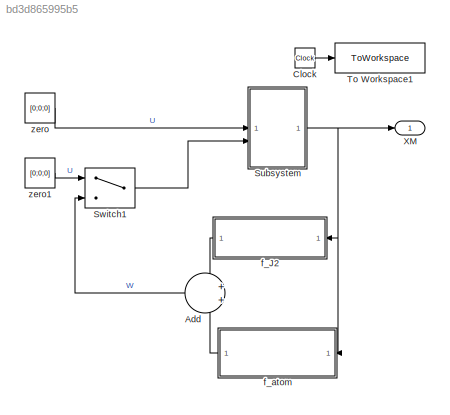
MODEL slx_bd3d865995b5
KIND model
CONFIG AbsTol = auto
CONFIG EnableMultiTasking = off
CONFIG FixedStep = 1
CONFIG MaxStep = auto
CONFIG MinStep = auto
CONFIG RelTol = 1e-3
CONFIG SampleTimeConstraint = Unconstrained
CONFIG SolverName = FixedStepAuto
CONFIG StartTime = 0.0
CONFIG StopTime =  6000*3
BLOCK [Sum] Add
  NameLocation = top
BLOCK [Clock] Clock
  DisplayTime = on
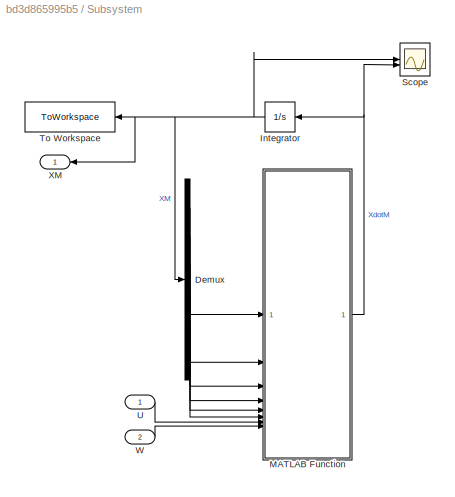
BLOCK [SubSystem] Subsystem
BLOCK [Demux] Subsystem/Demux
  Outputs = 6
BLOCK [Integrator] Subsystem/Integrator
  InitialCondition = X_init_cible
  NameLocation = top
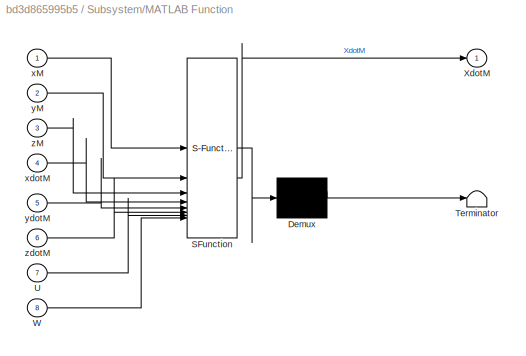
BLOCK [SubSystem] Subsystem/MATLAB Function
  ErrorFcn = Stateflow.Translate.translate
  LibrarySourceBlock = simulink/User-Defined\nFunctions/MATLAB Function
  PermitHierarchicalResolution = ExplicitOnly
  SFBlockType = MATLAB Function
  TreatAsAtomicUnit = on
BLOCK [Demux] Subsystem/MATLAB Function/ Demux 
  Outputs = 1
BLOCK [S-Function] Subsystem/MATLAB Function/ SFunction 
  EnableBusSupport = on
  FunctionName = sf_sfun
  PortCounts = [8 2]
  SFcnIsStateOwnerBlock = off
  SFunctionDeploymentMode = off
  Tag = Stateflow S-Function 2
BLOCK [Terminator] Subsystem/MATLAB Function/ Terminator 
BLOCK [Inport] Subsystem/MATLAB Function/U
  Port = 7
BLOCK [Inport] Subsystem/MATLAB Function/W
  Port = 8
BLOCK [Outport] Subsystem/MATLAB Function/XdotM
BLOCK [Inport] Subsystem/MATLAB Function/xM
BLOCK [Inport] Subsystem/MATLAB Function/xdotM
  Port = 4
BLOCK [Inport] Subsystem/MATLAB Function/yM
  Port = 2
BLOCK [Inport] Subsystem/MATLAB Function/ydotM
  Port = 5
BLOCK [Inport] Subsystem/MATLAB Function/zM
  Port = 3
BLOCK [Inport] Subsystem/MATLAB Function/zdotM
  Port = 6
BLOCK [Scope] Subsystem/Scope
  Floating = off
  NumInputPorts = 2
  ScopeSpecificationString = Simulink.scopes.TimeScopeBlockCfg('CurrentConfiguration', extmgr.ConfigurationSet(extmgr.Configuration('Core','General UI',true),extmgr.Configuration('Core','Source UI',true),extmgr.Configuration('Sources','WiredSimulink',true),extmgr.Configuration('Visuals','Time Domain',true,'SerializedDisplays',{struct('MinYLimReal','-8857214.37141','MaxYLimReal','8848029.84781','YLabelReal','','MinYLimMag','  ...<+2116ch>
BLOCK [ToWorkspace] Subsystem/To Workspace
  FixptAsFi = on
  MaxDataPoints = inf
  NameLocation = top
  SampleTime = -1
  Save2DSignal = 2-D array (concatenate along first dimension)
  VariableName = XM
BLOCK [Inport] Subsystem/U
BLOCK [Inport] Subsystem/W
  Port = 2
BLOCK [Outport] Subsystem/XM
  NameLocation = top
BLOCK [Switch] Switch1
  Criteria = u2 ~= 0
  InputSameDT = off
  SaturateOnIntegerOverflow = off
BLOCK [ToWorkspace] To Workspace1
  FixptAsFi = on
  MaxDataPoints = inf
  SampleTime = -1
  VariableName = t
BLOCK [Outport] XM
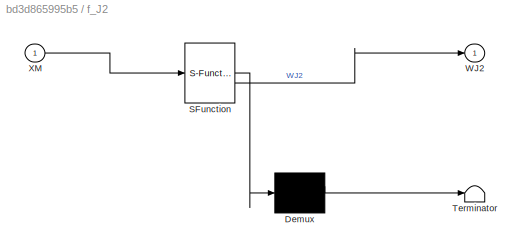
BLOCK [SubSystem] f_J2
  ErrorFcn = Stateflow.Translate.translate
  LibrarySourceBlock = simulink/User-Defined\nFunctions/MATLAB Function
  NameLocation = top
  PermitHierarchicalResolution = ExplicitOnly
  SFBlockType = MATLAB Function
  TreatAsAtomicUnit = on
BLOCK [Demux] f_J2/ Demux 
  Outputs = 1
BLOCK [S-Function] f_J2/ SFunction 
  EnableBusSupport = on
  FunctionName = sf_sfun
  PortCounts = [1 2]
  SFcnIsStateOwnerBlock = off
  SFunctionDeploymentMode = off
  Tag = Stateflow S-Function 4
BLOCK [Terminator] f_J2/ Terminator 
BLOCK [Outport] f_J2/WJ2
BLOCK [Inport] f_J2/XM
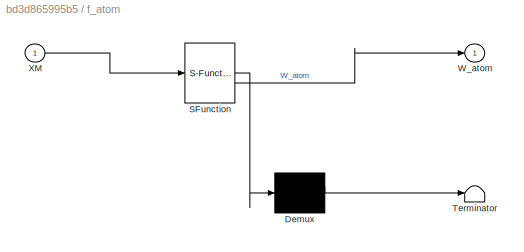
BLOCK [SubSystem] f_atom
  ErrorFcn = Stateflow.Translate.translate
  LibrarySourceBlock = simulink/User-Defined\nFunctions/MATLAB Function
  NameLocation = top
  PermitHierarchicalResolution = ExplicitOnly
  SFBlockType = MATLAB Function
  TreatAsAtomicUnit = on
BLOCK [Demux] f_atom/ Demux 
  Outputs = 1
BLOCK [S-Function] f_atom/ SFunction 
  EnableBusSupport = on
  FunctionName = sf_sfun
  PortCounts = [1 2]
  SFcnIsStateOwnerBlock = off
  SFunctionDeploymentMode = off
  Tag = Stateflow S-Function 3
BLOCK [Terminator] f_atom/ Terminator 
BLOCK [Outport] f_atom/W_atom
BLOCK [Inport] f_atom/XM
BLOCK [Constant] zero
  Value = [0;0;0]
BLOCK [Constant] zero1
  Value = [0;0;0]
LINE Add:1 -> Switch1:3
LINE Clock:1 -> To Workspace1:1
LINE Subsystem/Demux:1 -> Subsystem/MATLAB Function:1
LINE Subsystem/Demux:2 -> Subsystem/MATLAB Function:2
LINE Subsystem/Demux:3 -> Subsystem/MATLAB Function:3
LINE Subsystem/Demux:4 -> Subsystem/MATLAB Function:4
LINE Subsystem/Demux:5 -> Subsystem/MATLAB Function:5
LINE Subsystem/Demux:6 -> Subsystem/MATLAB Function:6
NET Subsystem/Integrator:1 -> Subsystem/Demux:1, Subsystem/Scope:1, Subsystem/To Workspace:1, Subsystem/XM:1
NET Subsystem/MATLAB Function:1 -> Subsystem/Integrator:1, Subsystem/Scope:2
LINE Subsystem/U:1 -> Subsystem/MATLAB Function:7
LINE Subsystem/W:1 -> Subsystem/MATLAB Function:8
NET Subsystem:1 -> XM:1, f_J2:1, f_atom:1
LINE Switch1:1 -> Subsystem:2
LINE f_J2:1 -> Add:1
LINE f_atom:1 -> Add:2
LINE zero1:1 -> Switch1:1
LINE zero:1 -> Subsystem:1
note: NET lines group one-source signal fan-out (src -> all destinations, sorted); 1:1 wires keep LINE
CHART Subsystem/MATLAB Function states=1 transitions=1
  STATE_LABEL 'eML_blk_kernel()'
  STATE_LABEL 'SCRIPT:\nfunction XdotM = f(xM,yM,zM,xdotM,ydotM,zdotM, U, W)\nmu = 3.986e14; \nBW = [  zeros(3,3);\n        eye(3)];\n\nBU = [  eye(3);\n        zeros(3,3)];\n\n\nXdotM = [   xdotM;\n            ydotM;\n            zdotM;\n            -mu/sqrt((xM^2 + yM^2 + zM^2)^3)*xM;\n            -mu/sqrt((xM^2 + yM^2 + zM^2)^3)*yM;\n            -mu/sqrt((xM^2 + yM^2 + zM^2)^3)*zM] + BU*U + BW*W;\n            \n \n'
CHART f_atom states=1 transitions=1
  STATE_LABEL 'eML_blk_kernel()'
  STATE_LABEL 'SCRIPT:\nfunction W_atom = f_atom(XM)\n\nrho_0 = 6.3e-13; \nrho = rho_0; \nS = 2; \nm = 191.1; \nCD = 2; \n\nW_atom = [  -rho*S*CD*sqrt(XM(4)^2+XM(5)^2+XM(6)^2)/2/m*XM(4)\n            -rho*S*CD*sqrt(XM(4)^2+XM(5)^2+XM(6)^2)/2/m*XM(5)\n            -rho*S*CD*sqrt(XM(4)^2+XM(5)^2+XM(6)^2)/2/m*XM(6) ]; \n'
CHART f_J2 states=1 transitions=1
  STATE_LABEL 'eML_blk_kernel()'
  STATE_LABEL 'SCRIPT:\nfunction WJ2 = fJ2(XM)\n\nmu = 3.986e14;          % constante gravitationnnelle \nJ2 = 1.082616e-3;       % second harmonique \nReq = 6378e3;           % rayon terrestre (m)\nWJ2 = 1/2*mu*J2*Req*Req*(3/sqrt(XM(1)^2+XM(2)^2+XM(3)^2)^4 - 15*XM(3)/sqrt(XM(1)^2+XM(2)^2+XM(3)^2)^6)*[XM(1);XM(2);XM(3)]/sqrt(XM(1)^2+XM(2)^2+XM(3)^2); \n'
CHART  states=0 transitions=0
CHART  states=0 transitions=0
CHART  states=0 transitions=0
